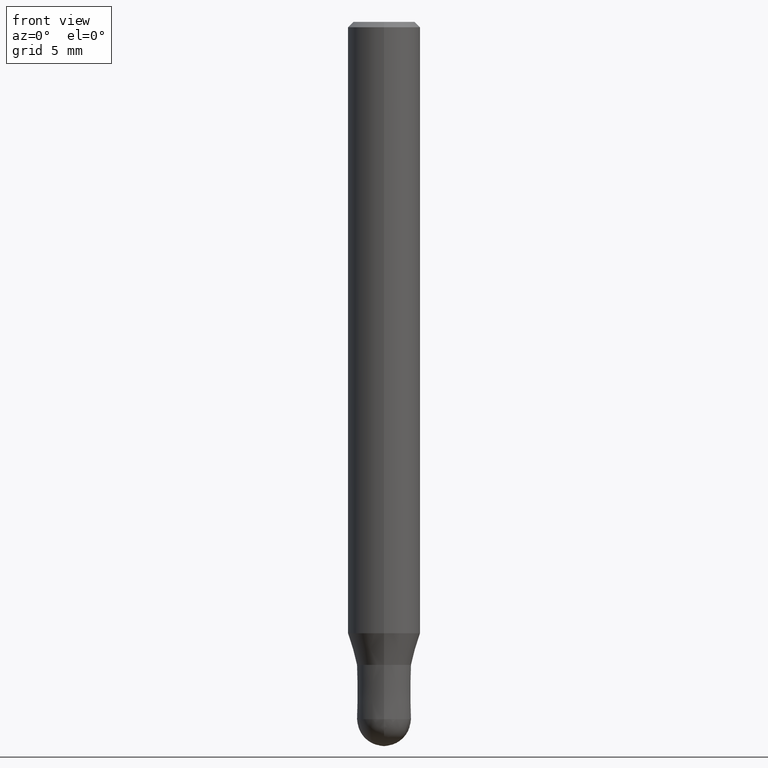
[diagram: clean part render]
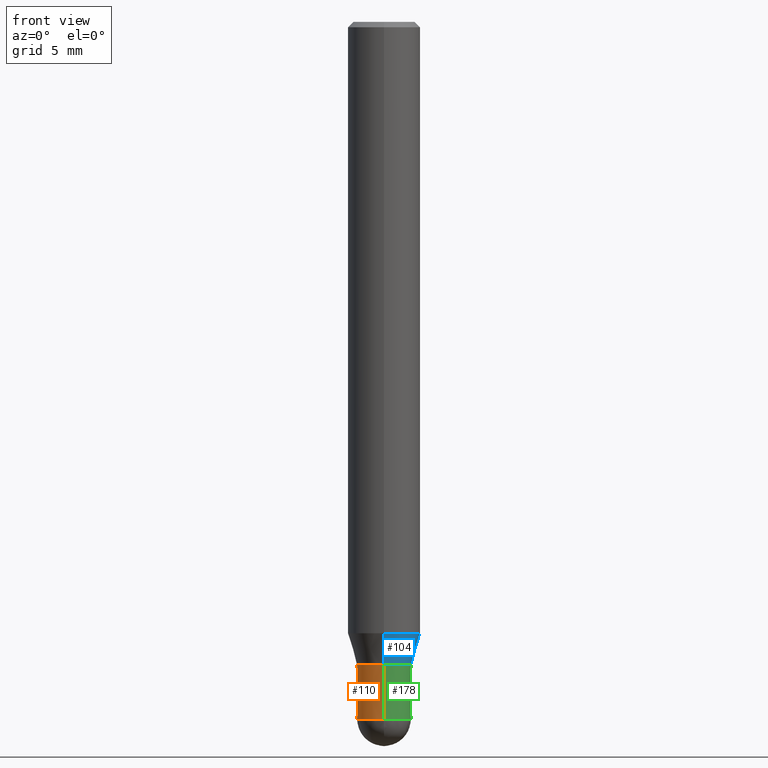
[diagram: same view with three faces highlighted in distinct colors, each labeled with its STEP entity id]
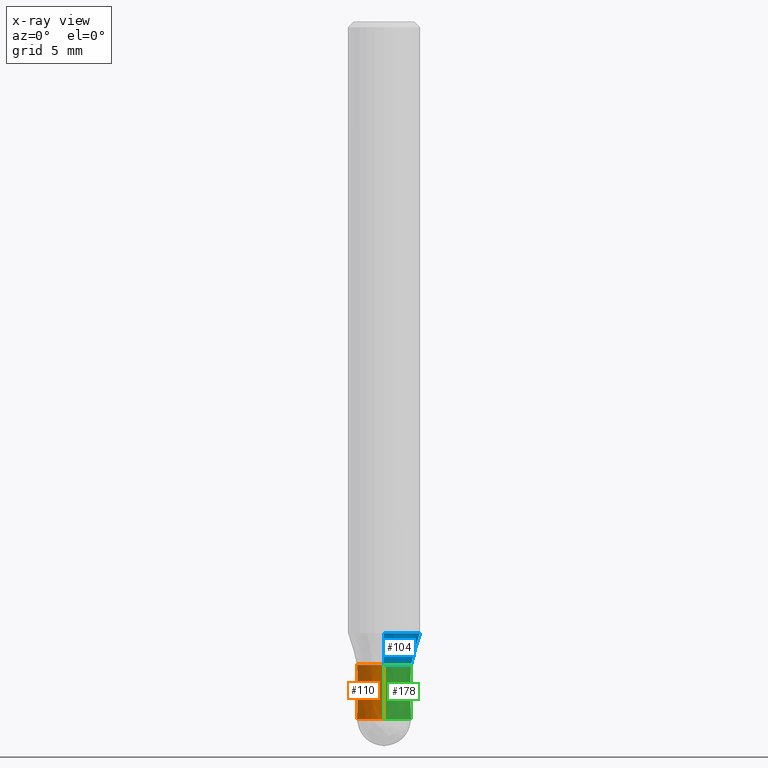
[diagram: x-ray of the same camera — body ghosted, the three highlighted faces saturated]
A machine part, front view with three faces highlighted in distinct colors.
The next image is the same camera in x-ray (body ghosted, the three faces saturated) — at least one of them is partly hidden behind the body in this view.
Their STEP definitions:

[orange] entity #110 — the highlighted conical surface has half-angle 0.002 deg.
#88=VERTEX_POINT('',#213);
#108=EDGE_CURVE('',#88,#138,#236,.T.);
#110=ADVANCED_FACE('',(#238),#239,.T.);
#120=EDGE_CURVE('',#158,#138,#250,.T.);
#122=EDGE_CURVE('',#190,#158,#252,.T.);
#138=VERTEX_POINT('',#270);
#158=VERTEX_POINT('',#295);
#180=EDGE_CURVE('',#88,#190,#320,.T.);
#190=VERTEX_POINT('',#330);
#213=CARTESIAN_POINT('',(1.83690953073357E-016,-1.5,-38.5));
#236=CIRCLE('',#373,1.5);
#238=FACE_OUTER_BOUND('',#375,.T.);
#239=CONICAL_SURFACE('',#376,1.49995,3.3333333321058E-005);
#250=LINE('',#392,#393);
#252=CIRCLE('',#396,1.4999);
#270=CARTESIAN_POINT('',(0.0,1.5,-38.5));
#295=CARTESIAN_POINT('',(0.0,1.4999,-35.5));
#320=LINE('',#477,#478);
#330=CARTESIAN_POINT('',(1.83678707009818E-016,-1.4999,-35.5));
#373=AXIS2_PLACEMENT_3D('',#520,#521,#522);
#375=EDGE_LOOP('',(#524,#525,#526,#527));
#376=AXIS2_PLACEMENT_3D('',#528,#529,#530);
#392=CARTESIAN_POINT('',(-1.83684830041587E-016,1.49995,-37.0));
#393=VECTOR('',#546,1.0);
#396=AXIS2_PLACEMENT_3D('',#547,#548,#549);
#477=CARTESIAN_POINT('',(1.83684830041587E-016,-1.49995,-37.0));
#478=VECTOR('',#640,1.0);
#520=CARTESIAN_POINT('',(0.0,0.0,-38.5));
#521=DIRECTION('',(0.0,0.0,-1.0));
#522=DIRECTION('',(0.0,1.0,0.0));
#524=ORIENTED_EDGE('',*,*,#120,.T.);
#525=ORIENTED_EDGE('',*,*,#108,.F.);
#526=ORIENTED_EDGE('',*,*,#180,.T.);
#527=ORIENTED_EDGE('',*,*,#122,.T.);
#528=CARTESIAN_POINT('',(0.0,0.0,-37.0));
#529=DIRECTION('',(0.0,-0.0,-1.0));
#530=DIRECTION('',(0.0,1.0,0.0));
#546=DIRECTION('',(-4.08202117714875E-021,3.33333333148852E-005,-0.999999999444445));
#547=CARTESIAN_POINT('',(0.0,0.0,-35.5));
#548=DIRECTION('',(0.0,0.0,-1.0));
#549=DIRECTION('',(0.0,1.0,0.0));
#640=DIRECTION('',(-4.08202117714875E-021,3.33333333148852E-005,0.999999999444445));

[blue] entity #104 — the highlighted conical surface has half-angle 15.997 deg.
#90=EDGE_CURVE('',#148,#98,#215,.T.);
#98=VERTEX_POINT('',#223);
#104=ADVANCED_FACE('',(#230),#231,.T.);
#112=EDGE_CURVE('',#154,#150,#241,.T.);
#114=EDGE_CURVE('',#98,#154,#243,.T.);
#148=VERTEX_POINT('',#283);
#150=VERTEX_POINT('',#285);
#154=VERTEX_POINT('',#291);
#184=EDGE_CURVE('',#148,#150,#324,.T.);
#215=LINE('',#349,#350);
#223=CARTESIAN_POINT('',(0.0,1.49995,-35.5));
#230=FACE_OUTER_BOUND('',#366,.T.);
#231=CONICAL_SURFACE('',#367,1.74995,0.279208199033747);
#241=LINE('',#379,#380);
#243=CIRCLE('',#383,1.49995);
#283=CARTESIAN_POINT('',(0.0,1.99995,-33.756));
#285=CARTESIAN_POINT('',(2.44915147732706E-016,-1.99995,-33.756));
#291=CARTESIAN_POINT('',(1.83684830041587E-016,-1.49995,-35.5));
#324=CIRCLE('',#484,1.99995);
#349=CARTESIAN_POINT('',(-2.14299988887147E-016,1.74995,-34.628));
#350=VECTOR('',#496,1.0);
#366=EDGE_LOOP('',(#507,#508,#509,#510));
#367=AXIS2_PLACEMENT_3D('',#511,#512,#513);
#379=CARTESIAN_POINT('',(2.14299988887147E-016,-1.74995,-34.628));
#380=VECTOR('',#531,1.0);
#383=AXIS2_PLACEMENT_3D('',#532,#533,#534);
#484=AXIS2_PLACEMENT_3D('',#644,#645,#646);
#496=DIRECTION('',(3.37494895041124E-017,-0.275594597388538,-0.961273955691222));
#507=ORIENTED_EDGE('',*,*,#90,.F.);
#508=ORIENTED_EDGE('',*,*,#184,.T.);
#509=ORIENTED_EDGE('',*,*,#112,.F.);
#510=ORIENTED_EDGE('',*,*,#114,.F.);
#511=CARTESIAN_POINT('',(0.0,0.0,-34.628));
#512=DIRECTION('',(-0.0,-0.0,1.0));
#513=DIRECTION('',(0.0,1.0,0.0));
#531=DIRECTION('',(3.37494895041124E-017,-0.275594597388538,0.961273955691222));
#532=CARTESIAN_POINT('',(0.0,0.0,-35.5));
#533=DIRECTION('',(0.0,0.0,-1.0));
#534=DIRECTION('',(0.0,1.0,0.0));
#644=CARTESIAN_POINT('',(0.0,0.0,-33.756));
#645=DIRECTION('',(0.0,0.0,-1.0));
#646=DIRECTION('',(0.0,1.0,0.0));

[green] entity #178 — the highlighted conical surface has half-angle 0.002 deg.
#88=VERTEX_POINT('',#213);
#120=EDGE_CURVE('',#158,#138,#250,.T.);
#138=VERTEX_POINT('',#270);
#158=VERTEX_POINT('',#295);
#160=EDGE_CURVE('',#138,#88,#297,.T.);
#174=EDGE_CURVE('',#158,#190,#313,.T.);
#178=ADVANCED_FACE('',(#317),#318,.T.);
#180=EDGE_CURVE('',#88,#190,#320,.T.);
#190=VERTEX_POINT('',#330);
#213=CARTESIAN_POINT('',(1.83690953073357E-016,-1.5,-38.5));
#250=LINE('',#392,#393);
#270=CARTESIAN_POINT('',(0.0,1.5,-38.5));
#295=CARTESIAN_POINT('',(0.0,1.4999,-35.5));
#297=CIRCLE('',#447,1.5);
#313=CIRCLE('',#468,1.4999);
#317=FACE_OUTER_BOUND('',#473,.T.);
#318=CONICAL_SURFACE('',#474,1.49995,3.3333333321058E-005);
#320=LINE('',#477,#478);
#330=CARTESIAN_POINT('',(1.83678707009818E-016,-1.4999,-35.5));
#392=CARTESIAN_POINT('',(-1.83684830041587E-016,1.49995,-37.0));
#393=VECTOR('',#546,1.0);
#447=AXIS2_PLACEMENT_3D('',#601,#602,#603);
#468=AXIS2_PLACEMENT_3D('',#626,#627,#628);
#473=EDGE_LOOP('',(#633,#634,#635,#636));
#474=AXIS2_PLACEMENT_3D('',#637,#638,#639);
#477=CARTESIAN_POINT('',(1.83684830041587E-016,-1.49995,-37.0));
#478=VECTOR('',#640,1.0);
#546=DIRECTION('',(-4.08202117714875E-021,3.33333333148852E-005,-0.999999999444445));
#601=CARTESIAN_POINT('',(0.0,0.0,-38.5));
#602=DIRECTION('',(0.0,0.0,-1.0));
#603=DIRECTION('',(0.0,1.0,0.0));
#626=CARTESIAN_POINT('',(0.0,0.0,-35.5));
#627=DIRECTION('',(0.0,0.0,-1.0));
#628=DIRECTION('',(0.0,1.0,0.0));
#633=ORIENTED_EDGE('',*,*,#120,.F.);
#634=ORIENTED_EDGE('',*,*,#174,.T.);
#635=ORIENTED_EDGE('',*,*,#180,.F.);
#636=ORIENTED_EDGE('',*,*,#160,.F.);
#637=CARTESIAN_POINT('',(0.0,0.0,-37.0));
#638=DIRECTION('',(0.0,-0.0,-1.0));
#639=DIRECTION('',(0.0,1.0,0.0));
#640=DIRECTION('',(-4.08202117714875E-021,3.33333333148852E-005,0.999999999444445));